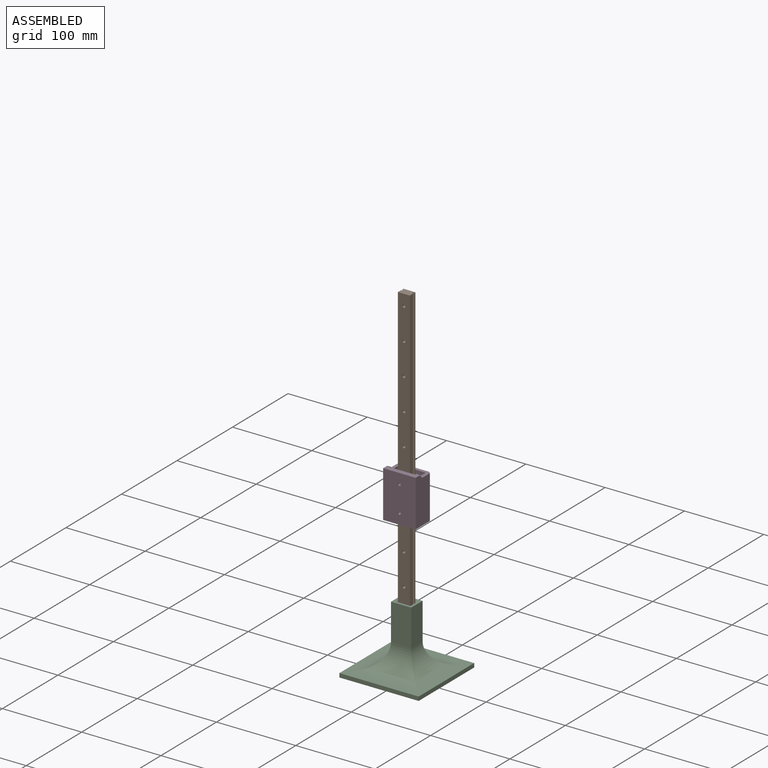
[diagram: assembled view]
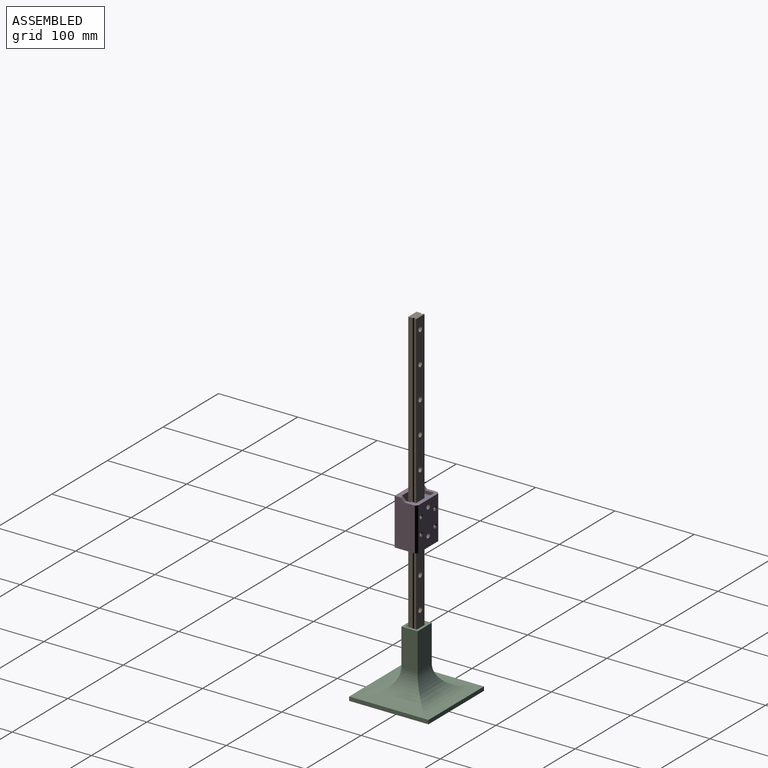
[diagram: assembled view, second angle]
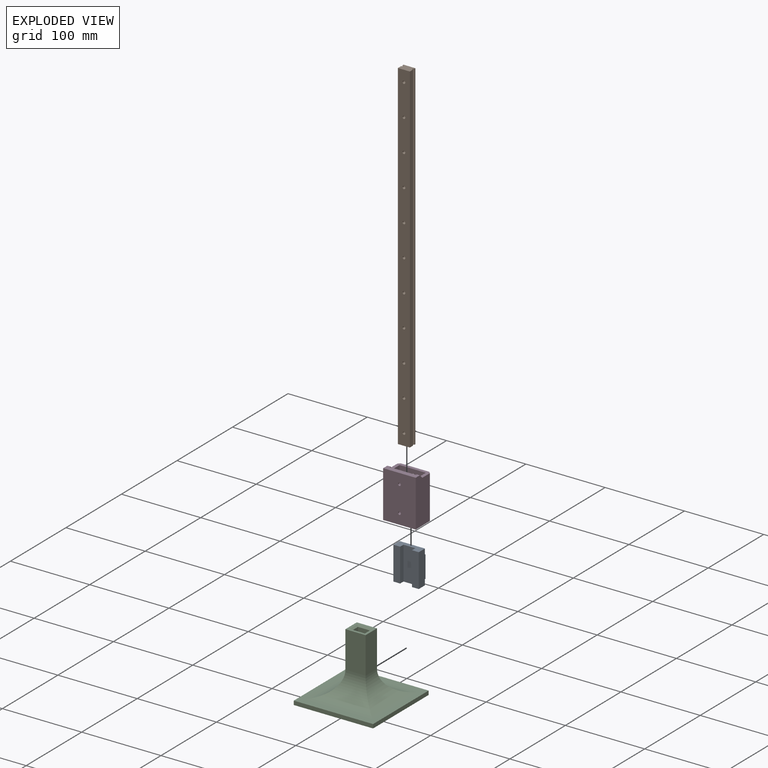
[diagram: exploded view]
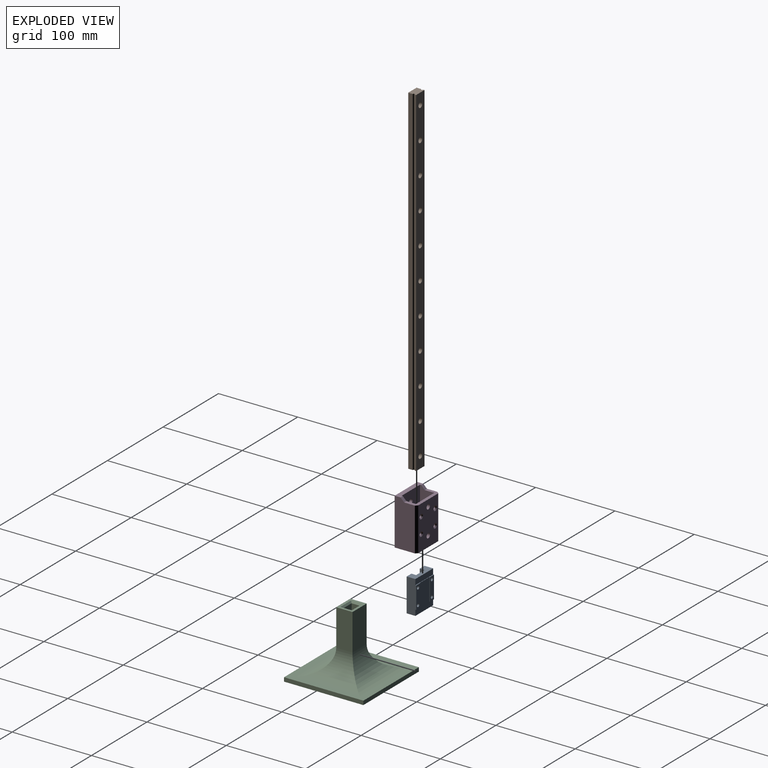
[diagram: exploded view, second angle]
ASSEMBLY  parts=4 mates=4
PART A: 26 faces, bbox 32x12x42 mm
  f0: plane 32x11mm, normal (0,0,-1), area 262mm2, adj f2,f3,f6,f8,f17,f18,f19,f24
  f1: plane 32x11mm, normal (0,0,1), area 262mm2, adj f2,f3,f6,f8,f17,f18,f19,f25
  f2: plane 42x12mm, normal (-1,0,0), area 490mm2, adj f0,f1,f6,f7,f20,f22,f24,f25
  f3: plane 42x12mm, normal (1,0,0), area 490mm2, adj f0,f1,f5,f8,f20,f22,f24,f25
  f4: plane 28x17mm, normal (0,-1,0), area 476mm2, adj f20,f21,f22,f23
  f5: plane 28x7.5mm, normal (0,-1,0), area 184.9mm2, adj f3,f11,f13,f20,f22,f23
  f6: plane 42x8.5mm, normal (0,1,0), area 357mm2, adj f0,f1,f2,f17
  f7: plane 28x7.5mm, normal (0,-1,0), area 184.9mm2, adj f2,f9,f15,f20,f21,f22
  f8: plane 42x8.5mm, normal (0,1,0), area 357mm2, adj f0,f1,f3,f18
  f9: cylinder r=2mm len=6mm, axis (0,-1,0), area 75.4mm2, adj f7,f10
  f10: plane 4x4mm, normal (0,-1,0), area 12.6mm2, adj f9
  f11: cylinder r=2mm len=6mm, axis (0,-1,0), area 75.4mm2, adj f5,f12
  f12: plane 4x4mm, normal (0,-1,0), area 12.6mm2, adj f11
  f13: cylinder r=2mm len=6mm, axis (0,-1,0), area 75.4mm2, adj f5,f14
  f14: plane 4x4mm, normal (0,-1,0), area 12.6mm2, adj f13
  f15: cylinder r=2mm len=6mm, axis (0,-1,0), area 75.4mm2, adj f7,f16
  f16: plane 4x4mm, normal (0,-1,0), area 12.6mm2, adj f15
  f17: plane 42x6mm, normal (1,0,0), area 252mm2, adj f0,f1,f6,f19
  f18: plane 42x6mm, normal (-1,0,0), area 252mm2, adj f0,f1,f8,f19
  f19: plane 42x15mm, normal (0,1,0), area 630mm2, adj f0,f1,f17,f18
  f20: plane 32x1mm, normal (0,0,1), area 23.5mm2, adj f2,f3,f4,f5,f7,f21,f23,f25
  f21: plane 28x0.5mm, normal (1,0,0), area 14mm2, adj f4,f7,f20,f22
  f22: plane 32x1mm, normal (0,0,-1), area 23.5mm2, adj f2,f3,f4,f5,f7,f21,f23,f24
  f23: plane 28x0.5mm, normal (-1,0,0), area 14mm2, adj f4,f5,f20,f22
  f24: plane 32x7mm, normal (0,-1,0), area 224mm2, adj f0,f2,f3,f22
  f25: plane 32x7mm, normal (0,-1,0), area 224mm2, adj f1,f2,f3,f20
PART B: 43 faces, bbox 15x10x428.6 mm
  f0: cylinder r=3.25mm len=6.5mm, axis (0,1,0), area 91.9mm2, adj f1,f35
  f1: plane 6.5x6.5mm, normal (0,1,0), area 23.6mm2, adj f0,f2
  f2: cylinder r=1.75mm len=5.5mm, axis (0,1,0), area 60.5mm2, adj f1,f33
  f3: cylinder r=3.25mm len=6.5mm, axis (0,1,0), area 91.9mm2, adj f4,f35
  f4: plane 6.5x6.5mm, normal (0,1,0), area 23.6mm2, adj f3,f5
  f5: cylinder r=1.75mm len=5.5mm, axis (0,1,0), area 60.5mm2, adj f4,f33
  f6: cylinder r=3.25mm len=6.5mm, axis (0,1,0), area 91.9mm2, adj f7,f35
  f7: plane 6.5x6.5mm, normal (0,1,0), area 23.6mm2, adj f6,f8
  f8: cylinder r=1.75mm len=5.5mm, axis (0,1,0), area 60.5mm2, adj f7,f33
  f9: cylinder r=3.25mm len=6.5mm, axis (0,1,0), area 91.9mm2, adj f10,f35
  f10: plane 6.5x6.5mm, normal (0,1,0), area 23.6mm2, adj f9,f11
  f11: cylinder r=1.75mm len=5.5mm, axis (0,1,0), area 60.5mm2, adj f10,f33
  f12: cylinder r=3.25mm len=6.5mm, axis (0,1,0), area 91.9mm2, adj f13,f35
  f13: plane 6.5x6.5mm, normal (0,1,0), area 23.6mm2, adj f12,f14
  f14: cylinder r=1.75mm len=5.5mm, axis (0,1,0), area 60.5mm2, adj f13,f33
  f15: cylinder r=3.25mm len=6.5mm, axis (0,1,0), area 91.9mm2, adj f16,f35
  f16: plane 6.5x6.5mm, normal (0,1,0), area 23.6mm2, adj f15,f17
  f17: cylinder r=1.75mm len=5.5mm, axis (0,1,0), area 60.5mm2, adj f16,f33
  f18: cylinder r=3.25mm len=6.5mm, axis (0,1,0), area 91.9mm2, adj f19,f35
  f19: plane 6.5x6.5mm, normal (0,1,0), area 23.6mm2, adj f18,f20
  f20: cylinder r=1.75mm len=5.5mm, axis (0,1,0), area 60.5mm2, adj f19,f33
  f21: cylinder r=3.25mm len=6.5mm, axis (0,1,0), area 91.9mm2, adj f22,f35
  f22: plane 6.5x6.5mm, normal (0,1,0), area 23.6mm2, adj f21,f23
  f23: cylinder r=1.75mm len=5.5mm, axis (0,1,0), area 60.5mm2, adj f22,f33
  f24: cylinder r=3.25mm len=6.5mm, axis (0,1,0), area 91.9mm2, adj f25,f35
  f25: plane 6.5x6.5mm, normal (0,1,0), area 23.6mm2, adj f24,f26
  f26: cylinder r=1.75mm len=5.5mm, axis (0,1,0), area 60.5mm2, adj f25,f33
  f27: cylinder r=3.25mm len=6.5mm, axis (0,1,0), area 91.9mm2, adj f28,f35
  f28: plane 6.5x6.5mm, normal (0,1,0), area 23.6mm2, adj f27,f29
  f29: cylinder r=1.75mm len=5.5mm, axis (0,1,0), area 60.5mm2, adj f28,f33
  f30: cylinder r=1.75mm len=5.5mm, axis (0,1,0), area 60.5mm2, adj f33,f41
  f31: plane 428.63x5.63mm, normal (1,0,0), area 2411mm2, adj f33,f37,f38,f39
  f32: plane 428.63x1.63mm, normal (-1,0,0), area 696.5mm2, adj f35,f37,f38,f40
  f33: plane 428.63x15mm, normal (0,-1,0), area 6323.5mm2, adj f2,f5,f8,f11,f14,f17,f20,f23
  f34: plane 428.63x1.63mm, normal (1,0,0), area 696.5mm2, adj f35,f37,f38,f39
  f35: plane 428.63x15mm, normal (0,1,0), area 6064.4mm2, adj f0,f3,f6,f9,f12,f15,f18,f21
  f36: plane 428.63x5.63mm, normal (-1,0,0), area 2411mm2, adj f33,f37,f38,f40
  f37: plane 15x10mm, normal (0,0,1), area 144.1mm2, adj f31,f32,f33,f34,f35,f36,f39,f40
  f38: plane 15x10mm, normal (0,0,-1), area 144.1mm2, adj f31,f32,f33,f34,f35,f36,f39,f40
  f39: cylinder r=1.38mm len=428.63mm, axis (0,0,1), area 1851.5mm2, adj f31,f34,f37,f38
  f40: cylinder r=1.38mm len=428.63mm, axis (0,0,1), area 1851.5mm2, adj f32,f36,f37,f38
  f41: plane 6.5x6.5mm, normal (0,1,0), area 23.6mm2, adj f30,f42
  f42: cylinder r=3.25mm len=6.5mm, axis (0,1,0), area 91.9mm2, adj f35,f41
PART C: 24 faces, bbox 100x100x81.2 mm
  f0: plane 100x100mm, normal (0,0,1), area 3117.3mm2, adj f1,f2,f3,f4,f16,f17,f18,f19
  f1: plane 100x5mm, normal (-1,0,0), area 500mm2, adj f0,f2,f4,f5
  f2: plane 100x5mm, normal (0,-1,0), area 500mm2, adj f0,f1,f3,f5
  f3: plane 100x5mm, normal (1,0,0), area 500mm2, adj f0,f2,f4,f5
  f4: plane 100x5mm, normal (0,1,0), area 500mm2, adj f0,f1,f3,f5
  f5: plane 100x100mm, normal (0,0,-1), area 10000mm2, adj f1,f2,f3,f4
  f6: plane 46.2x20.5mm, normal (-1,0,0), area 947.1mm2, adj f7,f13,f14,f16
  f7: plane 46.2x25.5mm, normal (0,-1,0), area 1178.1mm2, adj f6,f8,f14,f18
  f8: plane 46.2x20.5mm, normal (1,0,0), area 947.1mm2, adj f7,f13,f14,f19
  f9: plane 74.2x10.5mm, normal (1,0,0), area 779.1mm2, adj f10,f12,f15,f21
  f10: plane 74.2x15.5mm, normal (0,-1,0), area 1150.1mm2, adj f9,f11,f15,f20
  f11: plane 74.2x10.5mm, normal (-1,0,0), area 779.1mm2, adj f10,f12,f15,f22
  f12: plane 74.2x15.5mm, normal (0,1,0), area 1150.1mm2, adj f9,f11,f15,f23
  f13: plane 46.2x25.5mm, normal (0,1,0), area 1178.1mm2, adj f6,f8,f14,f17
  f14: plane 25.5x20.5mm, normal (0,0,1), area 240mm2, adj f6,f7,f8,f13,f20,f21,f22,f23
  f15: plane 15.5x10.5mm, normal (0,0,1), area 162.8mm2, adj f9,f10,f11,f12
  f16: cylinder r=30mm len=80.5mm, axis (0,-1,0), area 1993.5mm2, adj f0,f6,f17,f18
  f17: cylinder r=30mm len=85.5mm, axis (-1,0,0), area 2229.1mm2, adj f0,f13,f16,f19
  f18: cylinder r=30mm len=85.5mm, axis (1,0,0), area 2229.1mm2, adj f0,f7,f16,f19
  f19: cylinder r=30mm len=80.5mm, axis (0,1,0), area 1993.5mm2, adj f0,f8,f17,f18
  f20: plane 19.5x2mm, normal (0,-0.71,0.71), area 49.5mm2, adj f10,f14,f21,f22
  f21: plane 14.5x2mm, normal (0.71,0,0.71), area 35.4mm2, adj f9,f14,f20,f23
  f22: plane 14.5x2mm, normal (-0.71,0,0.71), area 35.4mm2, adj f11,f14,f20,f23
  f23: plane 19.5x2mm, normal (0,0.71,0.71), area 49.5mm2, adj f12,f14,f21,f22
PART D: 31 faces, bbox 28x41x59 mm
  f0: cylinder r=1.75mm len=3.5mm, axis (-1,0,0), area 22mm2, adj f17,f30
  f1: cylinder r=1.75mm len=3.5mm, axis (-1,0,0), area 22mm2, adj f15,f30
  f2: plane 41x28mm, normal (0,0,-1), area 547.8mm2, adj f3,f4,f5,f6,f7,f8,f9,f24
  f3: plane 54.5x36mm, normal (1,0,0), area 1792.4mm2, adj f2,f10,f22,f23,f24,f25,f26,f27
  f4: plane 59x33mm, normal (1,0,0), area 1890.5mm2, adj f2,f8,f9,f16,f18,f19
  f5: plane 59x25.5mm, normal (0,-1,0), area 1433.6mm2, adj f2,f10,f19,f21,f25,f30
  f6: plane 59x25.5mm, normal (0,1,0), area 1433.6mm2, adj f2,f10,f19,f20,f24,f30
  f7: plane 54.5x33mm, normal (-1,0,0), area 1703.5mm2, adj f2,f8,f9,f10,f11,f12,f13,f14
  f8: plane 59x18mm, normal (0,-1,0), area 997.9mm2, adj f2,f4,f7,f10,f19,f20
  f9: plane 59x18mm, normal (0,1,0), area 997.9mm2, adj f2,f4,f7,f10,f19,f21
  f10: plane 41x16mm, normal (0,0,1), area 253.8mm2, adj f3,f5,f6,f7,f8,f9,f20,f21
  f11: cylinder r=1.75mm len=3.5mm, axis (-1,0,0), area 30.2mm2, adj f7,f29
  f12: cylinder r=1.75mm len=3.5mm, axis (-1,0,0), area 30.2mm2, adj f7,f28
  f13: cylinder r=1.75mm len=3.5mm, axis (-1,0,0), area 30.2mm2, adj f7,f27
  f14: cylinder r=1.75mm len=3.5mm, axis (-1,0,0), area 30.2mm2, adj f7,f26
  f15: plane 6x6mm, normal (1,0,0), area 18.7mm2, adj f1,f16
  f16: cylinder r=3mm len=6mm, axis (1,0,0), area 75.4mm2, adj f4,f15
  f17: plane 6x6mm, normal (1,0,0), area 18.7mm2, adj f0,f18
  f18: cylinder r=3mm len=6mm, axis (1,0,0), area 75.4mm2, adj f4,f17
  f19: plane 41x7.5mm, normal (0,0,1), area 258mm2, adj f4,f5,f6,f8,f9,f20,f21,f30
  f20: plane 4.5x4.5mm, normal (0.71,0,0.71), area 25.5mm2, adj f6,f8,f10,f19
  f21: plane 4.5x4.5mm, normal (0.71,0,0.71), area 25.5mm2, adj f5,f9,f10,f19
  f22: cylinder r=3mm len=6mm, axis (1,0,0), area 75.4mm2, adj f3,f7
  f23: cylinder r=3mm len=6mm, axis (1,0,0), area 75.4mm2, adj f3,f7
  f24: plane 54.5x2.5mm, normal (0.71,0.71,0), area 192.7mm2, adj f2,f3,f6,f10
  f25: plane 54.5x2.5mm, normal (0.71,-0.71,0), area 192.7mm2, adj f2,f3,f5,f10
  f26: cone r=3mm half-angle=45deg, axis (1,0,0), area 26.4mm2, adj f3,f14
  f27: cone r=3mm half-angle=45deg, axis (1,0,0), area 26.4mm2, adj f3,f13
  f28: cone r=3mm half-angle=45deg, axis (1,0,0), area 26.4mm2, adj f3,f12
  f29: cone r=3mm half-angle=45deg, axis (1,0,0), area 26.4mm2, adj f3,f11
  f30: plane 59x41mm, normal (-1,0,0), area 2399.8mm2, adj f0,f1,f2,f5,f6,f19
PLACE A rot(axis=(1,0,0),180deg) t=(-16,-1.25,223.95)mm
PLACE B t=(-7.5,-5.25,5)mm
PLACE C at identity fixed
PLACE D rot(axis=(0,0,1),90deg) t=(20.5,10.75,177.95)mm
MATE slider B.f37 <-> A.f0  axis (0,0,1) through (0,4.75,433.63)mm
MATE fastened C.f12 <-> B.f33  axis (0,1,0) through (0,-5.25,5)mm
MATE revolute D.f14 <-> A.f13  axis (0,-1,0) through (12.5,10.75,212.95)mm
MATE revolute D.f12 <-> A.f9  axis (0,-1,0) through (-12.5,10.75,192.95)mm
